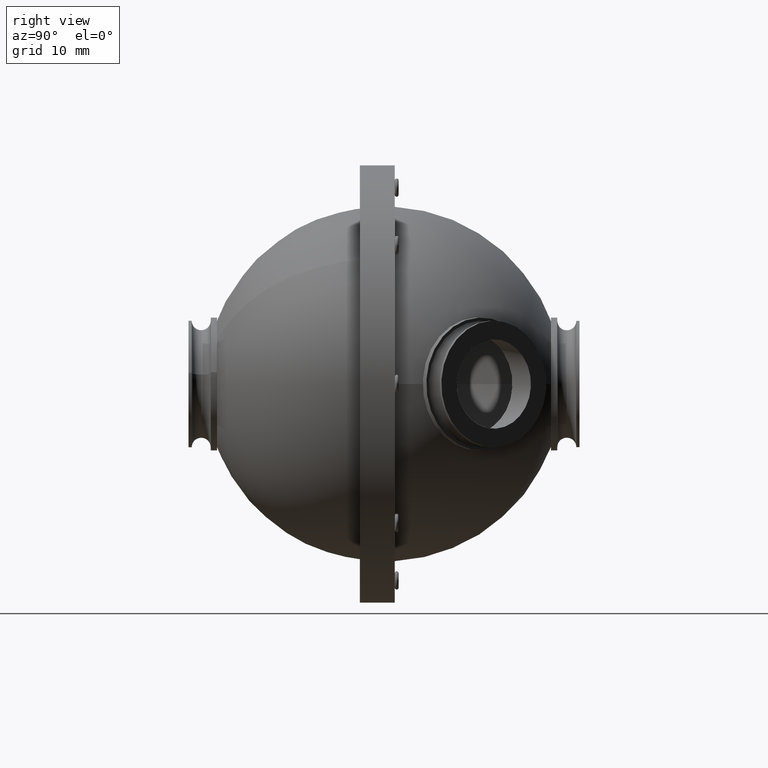
[diagram: clean part render]
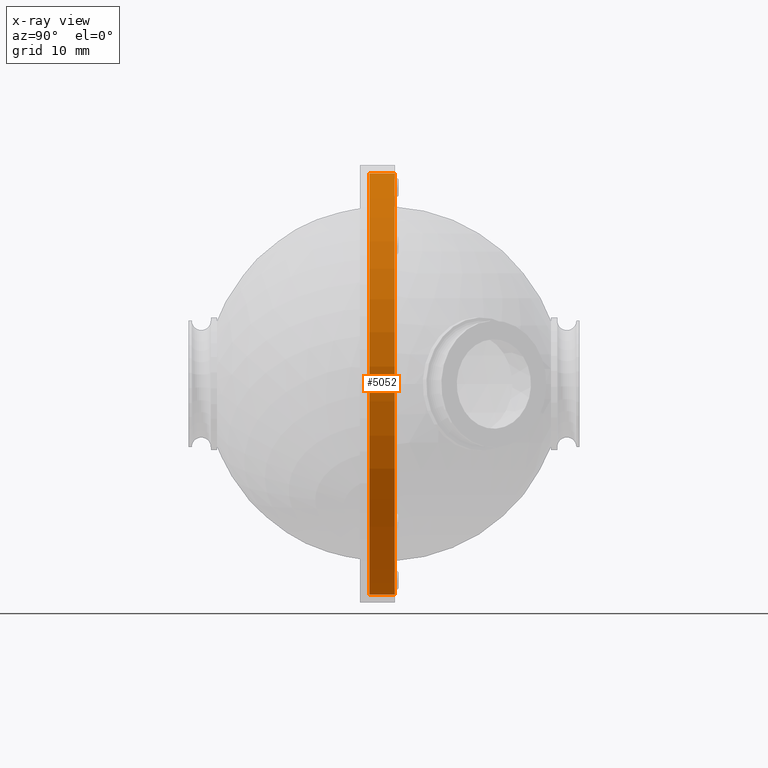
[diagram: x-ray — body ghosted, one internal face saturated and labeled with its STEP entity id]
A machine part, right view, then the same camera in x-ray: the body is ghosted and one INTERNAL B-rep face — a face not visible from any outside direction — is saturated and labeled: STEP entity #5052.
In plain terms, the highlighted cylindrical surface (partial cylindrical patch) has radius 33.25 mm, axis along (-0, 1, -0).
Its self-contained STEP definition (entity closure, byte-faithful):
#68 = DIRECTION ( 'NONE',  ( -0.000000000000000000, 1.000000000000000000, -0.000000000000000000 ) ) ;
#492 = VECTOR ( 'NONE', #956, 1000.000000000000000 ) ;
#551 = DIRECTION ( 'NONE',  ( 0.000000000000000000, 0.000000000000000000, 1.000000000000000000 ) ) ;
#587 = DIRECTION ( 'NONE',  ( 0.000000000000000000, 1.000000000000000000, 0.000000000000000000 ) ) ;
#956 = DIRECTION ( 'NONE',  ( -0.000000000000000000, 1.000000000000000000, -0.000000000000000000 ) ) ;
#958 = VERTEX_POINT ( 'NONE', #1758 ) ;
#1173 = VERTEX_POINT ( 'NONE', #1612 ) ;
#1237 = CIRCLE ( 'NONE', #5621, 33.25000000000000000 ) ;
#1322 = DIRECTION ( 'NONE',  ( -0.000000000000000000, 1.000000000000000000, -0.000000000000000000 ) ) ;
#1375 = CARTESIAN_POINT ( 'NONE',  ( 8.484018949608310933, -16.41086588718419748, -33.25000000000000000 ) ) ;
#1426 = LINE ( 'NONE', #3416, #492 ) ;
#1479 = DIRECTION ( 'NONE',  ( 0.000000000000000000, 0.000000000000000000, 1.000000000000000000 ) ) ;
#1537 = CYLINDRICAL_SURFACE ( 'NONE', #3284, 33.25000000000000000 ) ;
#1612 = CARTESIAN_POINT ( 'NONE',  ( 8.484018949608307381, -16.41086588718419748, 33.25000000000000000 ) ) ;
#1614 = DIRECTION ( 'NONE',  ( 0.000000000000000000, 1.000000000000000000, 0.000000000000000000 ) ) ;
#1758 = CARTESIAN_POINT ( 'NONE',  ( 8.484018949608307381, -20.41086588718420103, 33.25000000000000000 ) ) ;
#1809 = LINE ( 'NONE', #5808, #2998 ) ;
#2034 = DIRECTION ( 'NONE',  ( 0.000000000000000000, 0.000000000000000000, 1.000000000000000000 ) ) ;
#2084 = EDGE_CURVE ( 'NONE', #4445, #4489, #1426, .T. ) ;
#2094 = EDGE_CURVE ( 'NONE', #1173, #4489, #3522, .T. ) ;
#2413 = EDGE_CURVE ( 'NONE', #958, #1173, #1809, .T. ) ;
#2587 = EDGE_CURVE ( 'NONE', #958, #4445, #1237, .T. ) ;
#2637 = CARTESIAN_POINT ( 'NONE',  ( 8.484018949608310933, -20.41086588718420103, -33.25000000000000000 ) ) ;
#2998 = VECTOR ( 'NONE', #1322, 1000.000000000000000 ) ;
#3169 = ORIENTED_EDGE ( 'NONE', *, *, #2084, .F. ) ;
#3284 = AXIS2_PLACEMENT_3D ( 'NONE', #4576, #68, #551 ) ;
#3416 = CARTESIAN_POINT ( 'NONE',  ( 8.484018949608310933, -20.41086588718420103, -33.25000000000000000 ) ) ;
#3522 = CIRCLE ( 'NONE', #6256, 33.25000000000000000 ) ;
#4445 = VERTEX_POINT ( 'NONE', #2637 ) ;
#4489 = VERTEX_POINT ( 'NONE', #1375 ) ;
#4576 = CARTESIAN_POINT ( 'NONE',  ( 8.484018949608307381, -20.41086588718420103, 0.000000000000000000 ) ) ;
#4607 = ORIENTED_EDGE ( 'NONE', *, *, #2587, .F. ) ;
#4640 = FACE_OUTER_BOUND ( 'NONE', #6448, .T. ) ;
#4952 = ORIENTED_EDGE ( 'NONE', *, *, #2413, .T. ) ;
#5052 = ADVANCED_FACE ( 'NONE', ( #4640 ), #1537, .F. ) ;
#5324 = ORIENTED_EDGE ( 'NONE', *, *, #2094, .T. ) ;
#5621 = AXIS2_PLACEMENT_3D ( 'NONE', #6058, #587, #1479 ) ;
#5808 = CARTESIAN_POINT ( 'NONE',  ( 8.484018949608307381, -20.41086588718420103, 33.25000000000000000 ) ) ;
#6058 = CARTESIAN_POINT ( 'NONE',  ( 8.484018949608307381, -20.41086588718420103, 0.000000000000000000 ) ) ;
#6256 = AXIS2_PLACEMENT_3D ( 'NONE', #6464, #1614, #2034 ) ;
#6448 = EDGE_LOOP ( 'NONE', ( #3169, #4607, #4952, #5324 ) ) ;
#6464 = CARTESIAN_POINT ( 'NONE',  ( 8.484018949608307381, -16.41086588718419748, 0.000000000000000000 ) ) ;